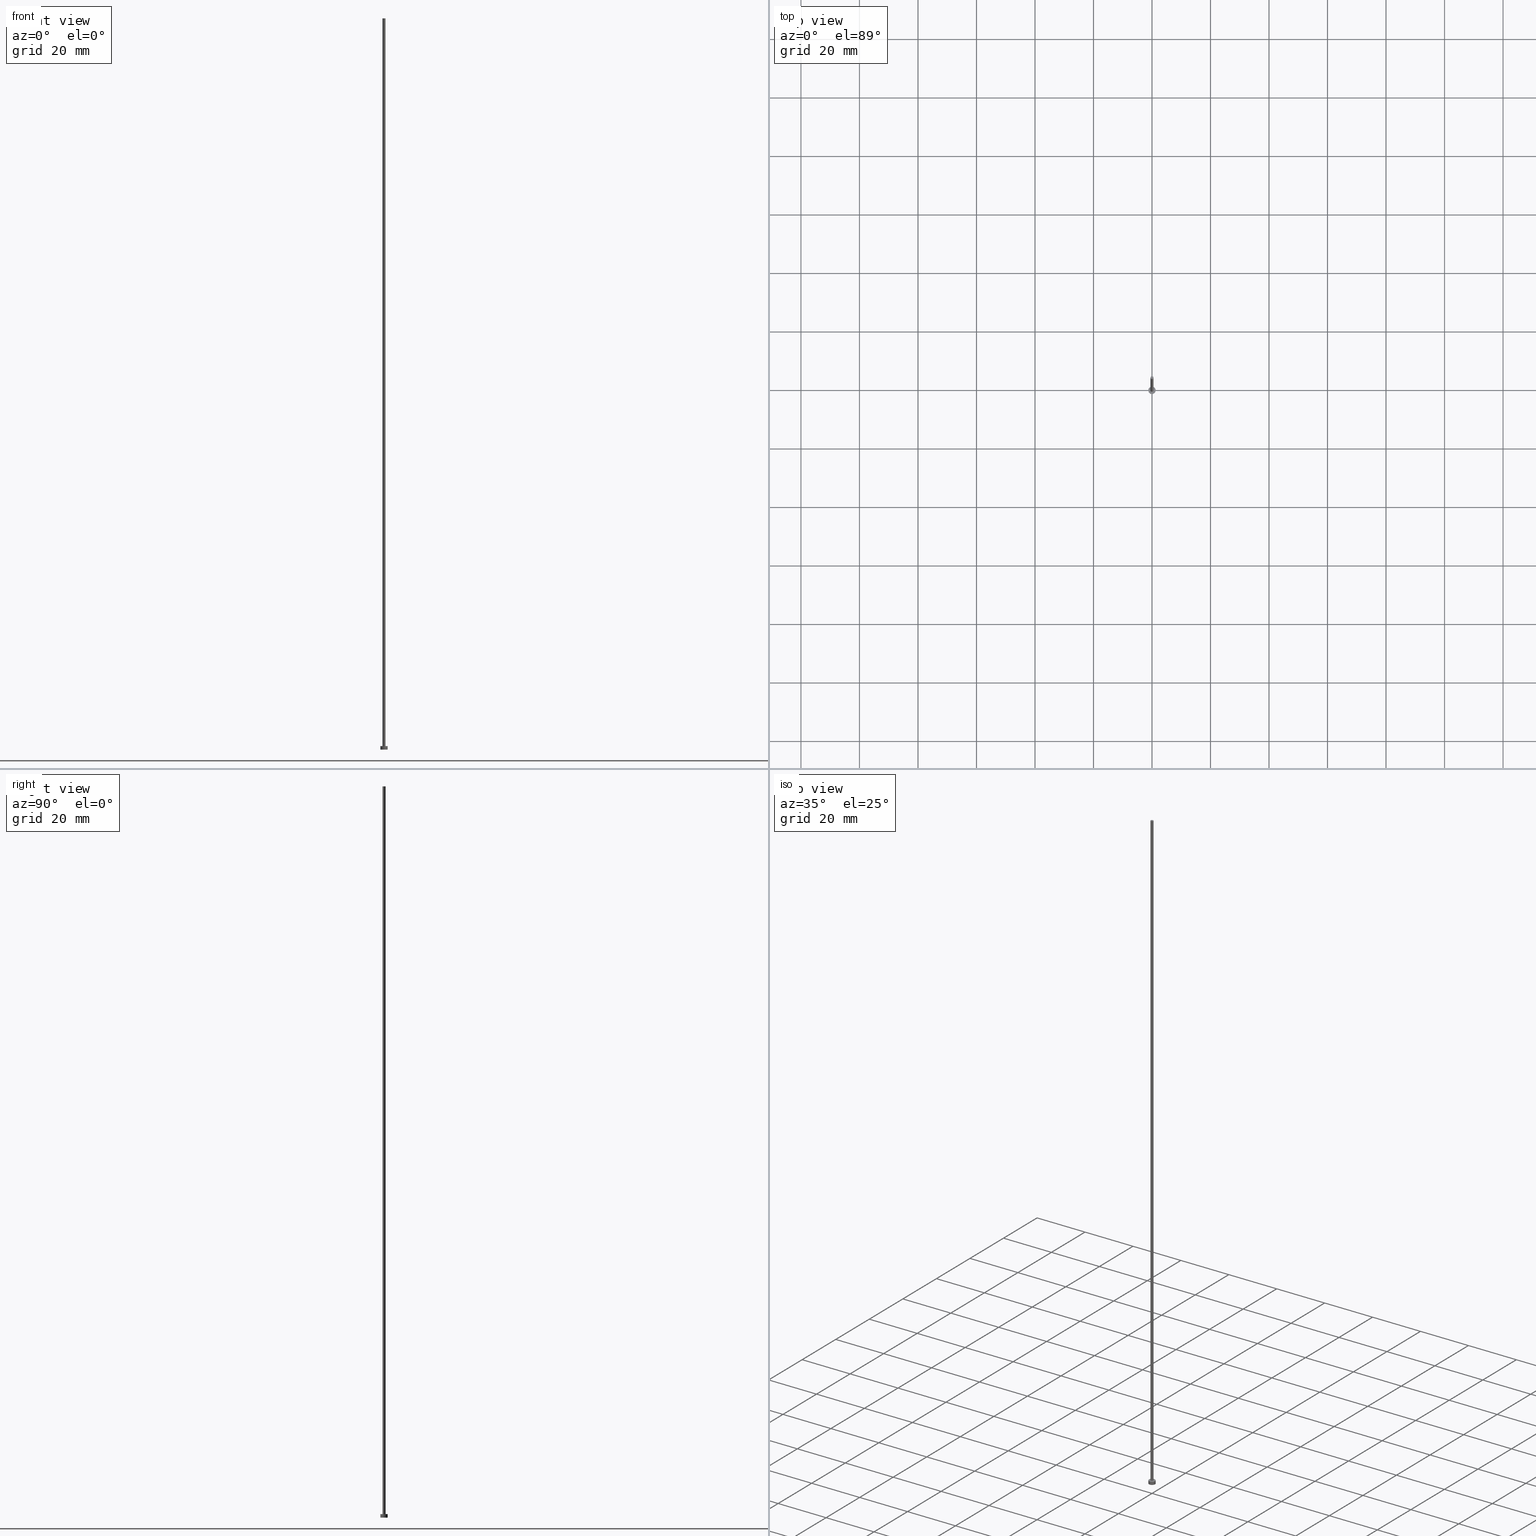
[diagram: canonical four-view strip — front | top / right | iso, engineering-drawing reading convention]
A machine part, canonical four-view strip (front | top / right | iso — engineering-drawing reading convention). The complete STEP part file that produces these views, byte-faithful:
ISO-10303-21;
HEADER;
FILE_DESCRIPTION (( 'STEP AP203' ),
    '1' );
FILE_NAME ('420b.STEP',
    '2026-02-06T12:34:04',
    ( '' ),
    ( '' ),
    'SwSTEP 2.0',
    'SolidWorks 2019',
    '' );
FILE_SCHEMA (( 'CONFIG_CONTROL_DESIGN' ));
ENDSEC;

DATA;
#1 = ORIENTED_EDGE ( 'NONE', *, *, #138, .T. ) ;
#2 = APPLICATION_PROTOCOL_DEFINITION ( 'international standard', 'config_control_design', 1994, #229 ) ;
#3 = ORIENTED_EDGE ( 'NONE', *, *, #138, .F. ) ;
#4 = CYLINDRICAL_SURFACE ( 'NONE', #218, 0.5000000000000000000 ) ;
#5 = APPROVAL ( #194, 'NEUR�EN�' ) ;
#6 = DIRECTION ( 'NONE',  ( 1.000000000000000000, 0.000000000000000000, 0.000000000000000000 ) ) ;
#7 = DIRECTION ( 'NONE',  ( -1.000000000000000000, 0.000000000000000000, 0.000000000000000000 ) ) ;
#8 = CARTESIAN_POINT ( 'NONE',  ( 0.000000000000000000, 0.000000000000000000, 250.0000000000000000 ) ) ;
#9 = ADVANCED_FACE ( 'NONE', ( #80 ), #160, .T. ) ;
#10 = PERSON_AND_ORGANIZATION_ROLE ( 'creator' ) ;
#11 = EDGE_CURVE ( 'NONE', #120, #136, #49, .T. ) ;
#12 = CC_DESIGN_PERSON_AND_ORGANIZATION_ASSIGNMENT ( #213, #10, ( #57 ) ) ;
#13 = AXIS2_PLACEMENT_3D ( 'NONE', #132, #23, #246 ) ;
#14 = CARTESIAN_POINT ( 'NONE',  ( -1.250000000000000000, 0.000000000000000000, 1.199999999999999956 ) ) ;
#15 = ORIENTED_EDGE ( 'NONE', *, *, #31, .F. ) ;
#16 = AXIS2_PLACEMENT_3D ( 'NONE', #71, #32, #95 ) ;
#17 = ORIENTED_EDGE ( 'NONE', *, *, #192, .T. ) ;
#18 = ORIENTED_EDGE ( 'NONE', *, *, #195, .F. ) ;
#19 = ORIENTED_EDGE ( 'NONE', *, *, #36, .T. ) ;
#20 = DIRECTION ( 'NONE',  ( 1.000000000000000000, 0.000000000000000000, 0.000000000000000000 ) ) ;
#21 = CC_DESIGN_APPROVAL ( #253, ( #154 ) ) ;
#22 = CARTESIAN_POINT ( 'NONE',  ( 0.000000000000000000, 0.000000000000000000, 0.000000000000000000 ) ) ;
#23 = DIRECTION ( 'NONE',  ( 0.000000000000000000, 0.000000000000000000, 1.000000000000000000 ) ) ;
#24 = PLANE ( 'NONE',  #43 ) ;
#25 = PLANE ( 'NONE',  #13 ) ;
#26 = CARTESIAN_POINT ( 'NONE',  ( -0.5000000000000000000, 0.000000000000000000, 250.0000000000000000 ) ) ;
#27 = PERSON_AND_ORGANIZATION ( #162, #85 ) ;
#28 = CARTESIAN_POINT ( 'NONE',  ( -1.250000000000000000, 0.000000000000000000, 1.199999999999999956 ) ) ;
#29 = CC_DESIGN_PERSON_AND_ORGANIZATION_ASSIGNMENT ( #242, #198, ( #66 ) ) ;
#30 = CYLINDRICAL_SURFACE ( 'NONE', #92, 1.250000000000000000 ) ;
#31 = EDGE_CURVE ( 'NONE', #99, #34, #37, .T. ) ;
#32 = DIRECTION ( 'NONE',  ( 0.000000000000000000, 0.000000000000000000, 1.000000000000000000 ) ) ;
#33 = CIRCLE ( 'NONE', #70, 1.250000000000000000 ) ;
#34 = VERTEX_POINT ( 'NONE', #124 ) ;
#35 = ORIENTED_EDGE ( 'NONE', *, *, #245, .T. ) ;
#36 = EDGE_CURVE ( 'NONE', #178, #193, #146, .T. ) ;
#37 = LINE ( 'NONE', #243, #116 ) ;
#38 = PRODUCT_DEFINITION_SHAPE ( 'NONE', 'NONE',  #154 ) ;
#39 = DIRECTION ( 'NONE',  ( 1.000000000000000000, 0.000000000000000000, 0.000000000000000000 ) ) ;
#40 = DIRECTION ( 'NONE',  ( -0.000000000000000000, -0.000000000000000000, -1.000000000000000000 ) ) ;
#41 = CARTESIAN_POINT ( 'NONE',  ( 0.000000000000000000, 0.000000000000000000, 0.000000000000000000 ) ) ;
#42 = CC_DESIGN_DATE_AND_TIME_ASSIGNMENT ( #77, #118, ( #66 ) ) ;
#43 = AXIS2_PLACEMENT_3D ( 'NONE', #247, #63, #128 ) ;
#44 = DIRECTION ( 'NONE',  ( 1.000000000000000000, 0.000000000000000000, 0.000000000000000000 ) ) ;
#45 = APPROVAL_ROLE ( '' ) ;
#46 = CARTESIAN_POINT ( 'NONE',  ( 0.000000000000000000, 0.000000000000000000, 1.199999999999999956 ) ) ;
#47 = APPROVAL_PERSON_ORGANIZATION ( #59, #5, #158 ) ;
#48 = ADVANCED_FACE ( 'NONE', ( #167 ), #204, .T. ) ;
#49 = CIRCLE ( 'NONE', #140, 1.250000000000000000 ) ;
#50 = ORIENTED_EDGE ( 'NONE', *, *, #106, .T. ) ;
#51 = EDGE_LOOP ( 'NONE', ( #159, #17, #19, #224 ) ) ;
#52 = ORIENTED_EDGE ( 'NONE', *, *, #153, .T. ) ;
#53 = CC_DESIGN_PERSON_AND_ORGANIZATION_ASSIGNMENT ( #221, #141, ( #57 ) ) ;
#54 = COORDINATED_UNIVERSAL_TIME_OFFSET ( 1, 0, .AHEAD. ) ;
#55 = EDGE_LOOP ( 'NONE', ( #143, #74, #197, #50 ) ) ;
#56 = EDGE_LOOP ( 'NONE', ( #236, #139 ) ) ;
#57 = PRODUCT_DEFINITION_FORMATION_WITH_SPECIFIED_SOURCE ( 'LIBOVOLN�', '', #127, .NOT_KNOWN. ) ;
#58 = CARTESIAN_POINT ( 'NONE',  ( 0.000000000000000000, 0.000000000000000000, 1.199999999999999956 ) ) ;
#59 = PERSON_AND_ORGANIZATION ( #162, #85 ) ;
#60 = DIRECTION ( 'NONE',  ( -0.000000000000000000, -0.000000000000000000, -1.000000000000000000 ) ) ;
#61 = AXIS2_PLACEMENT_3D ( 'NONE', #216, #93, #233 ) ;
#62 = CARTESIAN_POINT ( 'NONE',  ( 1.250000000000000000, 1.530808498934191571E-16, 1.199999999999999956 ) ) ;
#63 = DIRECTION ( 'NONE',  ( 0.000000000000000000, 0.000000000000000000, 1.000000000000000000 ) ) ;
#64 = DIRECTION ( 'NONE',  ( -0.000000000000000000, -0.000000000000000000, -1.000000000000000000 ) ) ;
#65 =( NAMED_UNIT ( * ) SI_UNIT ( $, .STERADIAN. ) SOLID_ANGLE_UNIT ( ) );
#66 = SECURITY_CLASSIFICATION ( '', '', #203 ) ;
#67 = COORDINATED_UNIVERSAL_TIME_OFFSET ( 1, 0, .AHEAD. ) ;
#68 = FACE_BOUND ( 'NONE', #201, .T. ) ;
#69 =( NAMED_UNIT ( * ) PLANE_ANGLE_UNIT ( ) SI_UNIT ( $, .RADIAN. ) );
#70 = AXIS2_PLACEMENT_3D ( 'NONE', #41, #130, #210 ) ;
#71 = CARTESIAN_POINT ( 'NONE',  ( 0.000000000000000000, 0.000000000000000000, 1.199999999999999956 ) ) ;
#72 =( LENGTH_UNIT ( ) NAMED_UNIT ( * ) SI_UNIT ( .MILLI., .METRE. ) );
#73 = ADVANCED_FACE ( 'NONE', ( #84 ), #4, .T. ) ;
#74 = ORIENTED_EDGE ( 'NONE', *, *, #11, .F. ) ;
#75 = CIRCLE ( 'NONE', #102, 0.5000000000000000000 ) ;
#76 = APPROVAL ( #250, 'NEUR�EN�' ) ;
#77 = DATE_AND_TIME ( #239, #202 ) ;
#78 = AXIS2_PLACEMENT_3D ( 'NONE', #83, #40, #7 ) ;
#79 = APPROVAL_ROLE ( '' ) ;
#80 = FACE_OUTER_BOUND ( 'NONE', #51, .T. ) ;
#81 = PERSON_AND_ORGANIZATION_ROLE ( 'design_owner' ) ;
#82 = UNCERTAINTY_MEASURE_WITH_UNIT (LENGTH_MEASURE( 1.000000000000000082E-05 ), #72, 'distance_accuracy_value', 'NONE');
#83 = CARTESIAN_POINT ( 'NONE',  ( 0.000000000000000000, 0.000000000000000000, 250.0000000000000000 ) ) ;
#84 = FACE_OUTER_BOUND ( 'NONE', #156, .T. ) ;
#85 = ORGANIZATION ( 'NEUR�EN�', 'NEUR�EN�', '' ) ;
#86 = ADVANCED_FACE ( 'NONE', ( #206 ), #24, .F. ) ;
#87 = LINE ( 'NONE', #248, #133 ) ;
#88 = DIRECTION ( 'NONE',  ( 0.000000000000000000, 0.000000000000000000, 1.000000000000000000 ) ) ;
#89 = DATE_TIME_ROLE ( 'creation_date' ) ;
#90 = DIRECTION ( 'NONE',  ( -0.000000000000000000, -0.000000000000000000, -1.000000000000000000 ) ) ;
#91 = APPROVAL_STATUS ( 'not_yet_approved' ) ;
#92 = AXIS2_PLACEMENT_3D ( 'NONE', #112, #90, #172 ) ;
#93 = DIRECTION ( 'NONE',  ( 0.000000000000000000, 0.000000000000000000, 1.000000000000000000 ) ) ;
#94 = EDGE_CURVE ( 'NONE', #184, #104, #208, .T. ) ;
#95 = DIRECTION ( 'NONE',  ( 1.000000000000000000, 0.000000000000000000, 0.000000000000000000 ) ) ;
#96 = ORIENTED_EDGE ( 'NONE', *, *, #94, .F. ) ;
#97 = LOCAL_TIME ( 13, 34, 4.000000000000000000, #67 ) ;
#98 = CALENDAR_DATE ( 2026, 6, 2 ) ;
#99 = VERTEX_POINT ( 'NONE', #249 ) ;
#100 = DATE_AND_TIME ( #98, #174 ) ;
#101 = PERSON_AND_ORGANIZATION ( #162, #85 ) ;
#102 = AXIS2_PLACEMENT_3D ( 'NONE', #46, #88, #6 ) ;
#103 = VECTOR ( 'NONE', #190, 1000.000000000000000 ) ;
#104 = VERTEX_POINT ( 'NONE', #149 ) ;
#105 = DIRECTION ( 'NONE',  ( 0.000000000000000000, 0.000000000000000000, 1.000000000000000000 ) ) ;
#106 = EDGE_CURVE ( 'NONE', #193, #178, #33, .T. ) ;
#107 = DIRECTION ( 'NONE',  ( 0.000000000000000000, 0.000000000000000000, 1.000000000000000000 ) ) ;
#108 = CC_DESIGN_PERSON_AND_ORGANIZATION_ASSIGNMENT ( #27, #111, ( #154 ) ) ;
#109 = DIRECTION ( 'NONE',  ( -1.000000000000000000, 0.000000000000000000, 0.000000000000000000 ) ) ;
#110 = AXIS2_PLACEMENT_3D ( 'NONE', #22, #107, #39 ) ;
#111 = PERSON_AND_ORGANIZATION_ROLE ( 'creator' ) ;
#112 = CARTESIAN_POINT ( 'NONE',  ( 0.000000000000000000, 0.000000000000000000, 1.199999999999999956 ) ) ;
#113 = CALENDAR_DATE ( 2026, 6, 2 ) ;
#114 = AXIS2_PLACEMENT_3D ( 'NONE', #191, #181, #255 ) ;
#115 = DIRECTION ( 'NONE',  ( 0.000000000000000000, 0.000000000000000000, 1.000000000000000000 ) ) ;
#116 = VECTOR ( 'NONE', #60, 1000.000000000000000 ) ;
#117 = ORIENTED_EDGE ( 'NONE', *, *, #31, .T. ) ;
#118 = DATE_TIME_ROLE ( 'classification_date' ) ;
#119 = ORIENTED_EDGE ( 'NONE', *, *, #94, .T. ) ;
#120 = VERTEX_POINT ( 'NONE', #28 ) ;
#121 = APPROVAL_DATE_TIME ( #100, #5 ) ;
#122 = EDGE_LOOP ( 'NONE', ( #52, #237 ) ) ;
#123 = APPROVAL_PERSON_ORGANIZATION ( #131, #76, #45 ) ;
#124 = CARTESIAN_POINT ( 'NONE',  ( 0.5000000000000000000, 6.123233995736764803E-17, 1.199999999999999956 ) ) ;
#125 = DATE_AND_TIME ( #173, #183 ) ;
#126 = DIRECTION ( 'NONE',  ( -0.000000000000000000, -0.000000000000000000, -1.000000000000000000 ) ) ;
#127 = PRODUCT ( '420b', '420b', '', ( #188 ) ) ;
#128 = DIRECTION ( 'NONE',  ( 1.000000000000000000, 0.000000000000000000, -0.000000000000000000 ) ) ;
#129 = CARTESIAN_POINT ( 'NONE',  ( -1.250000000000000000, 0.000000000000000000, 0.000000000000000000 ) ) ;
#130 = DIRECTION ( 'NONE',  ( 0.000000000000000000, 0.000000000000000000, 1.000000000000000000 ) ) ;
#131 = PERSON_AND_ORGANIZATION ( #162, #85 ) ;
#132 = CARTESIAN_POINT ( 'NONE',  ( 0.000000000000000000, 0.000000000000000000, 1.199999999999999956 ) ) ;
#133 = VECTOR ( 'NONE', #64, 1000.000000000000000 ) ;
#134 = CIRCLE ( 'NONE', #226, 1.250000000000000000 ) ;
#135 = ADVANCED_BREP_SHAPE_REPRESENTATION ( '420b', ( #219, #240 ), #230 ) ;
#136 = VERTEX_POINT ( 'NONE', #62 ) ;
#137 = COORDINATED_UNIVERSAL_TIME_OFFSET ( 1, 0, .AHEAD. ) ;
#138 = EDGE_CURVE ( 'NONE', #104, #34, #75, .T. ) ;
#139 = ORIENTED_EDGE ( 'NONE', *, *, #235, .T. ) ;
#140 = AXIS2_PLACEMENT_3D ( 'NONE', #58, #142, #199 ) ;
#141 = PERSON_AND_ORGANIZATION_ROLE ( 'design_supplier' ) ;
#142 = DIRECTION ( 'NONE',  ( 0.000000000000000000, 0.000000000000000000, 1.000000000000000000 ) ) ;
#143 = ORIENTED_EDGE ( 'NONE', *, *, #192, .F. ) ;
#144 = DATE_AND_TIME ( #113, #150 ) ;
#145 = CARTESIAN_POINT ( 'NONE',  ( 0.000000000000000000, 0.000000000000000000, 0.000000000000000000 ) ) ;
#146 = CIRCLE ( 'NONE', #110, 1.250000000000000000 ) ;
#147 = CARTESIAN_POINT ( 'NONE',  ( 0.000000000000000000, 0.000000000000000000, 250.0000000000000000 ) ) ;
#148 = FACE_OUTER_BOUND ( 'NONE', #157, .T. ) ;
#149 = CARTESIAN_POINT ( 'NONE',  ( -0.5000000000000000000, 0.000000000000000000, 1.199999999999999956 ) ) ;
#150 = LOCAL_TIME ( 13, 34, 4.000000000000000000, #212 ) ;
#151 = CARTESIAN_POINT ( 'NONE',  ( 1.250000000000000000, 1.530808498934191571E-16, 0.000000000000000000 ) ) ;
#152 = DIRECTION ( 'NONE',  ( 0.000000000000000000, 0.000000000000000000, 1.000000000000000000 ) ) ;
#153 = EDGE_CURVE ( 'NONE', #184, #99, #244, .T. ) ;
#154 = PRODUCT_DEFINITION ( 'NEZN�M�', '', #57, #254 ) ;
#155 = CARTESIAN_POINT ( 'NONE',  ( 0.000000000000000000, 0.000000000000000000, 1.199999999999999956 ) ) ;
#156 = EDGE_LOOP ( 'NONE', ( #15, #222, #119, #1 ) ) ;
#157 = EDGE_LOOP ( 'NONE', ( #18, #117, #35, #96 ) ) ;
#158 = APPROVAL_ROLE ( '' ) ;
#159 = ORIENTED_EDGE ( 'NONE', *, *, #235, .F. ) ;
#160 = CYLINDRICAL_SURFACE ( 'NONE', #114, 1.250000000000000000 ) ;
#161 = AXIS2_PLACEMENT_3D ( 'NONE', #147, #105, #185 ) ;
#162 = PERSON ( 'NEUR�EN�', 'NEUR�EN�', 'NEUR�EN�', ('NEUR�EN�'), ('NEUR�EN�'), ('NEUR�EN�') ) ;
#163 = ADVANCED_FACE ( 'NONE', ( #148 ), #211, .T. ) ;
#164 = COORDINATED_UNIVERSAL_TIME_OFFSET ( 1, 0, .AHEAD. ) ;
#165 = APPLICATION_CONTEXT ( 'configuration controlled 3d designs of mechanical parts and assemblies' ) ;
#166 = CC_DESIGN_APPROVAL ( #76, ( #57 ) ) ;
#167 = FACE_OUTER_BOUND ( 'NONE', #122, .T. ) ;
#168 = DIRECTION ( 'NONE',  ( -0.000000000000000000, -0.000000000000000000, -1.000000000000000000 ) ) ;
#169 = FACE_OUTER_BOUND ( 'NONE', #55, .T. ) ;
#170 = CALENDAR_DATE ( 2026, 6, 2 ) ;
#171 = CC_DESIGN_PERSON_AND_ORGANIZATION_ASSIGNMENT ( #101, #81, ( #127 ) ) ;
#172 = DIRECTION ( 'NONE',  ( -1.000000000000000000, 0.000000000000000000, 0.000000000000000000 ) ) ;
#173 = CALENDAR_DATE ( 2026, 6, 2 ) ;
#174 = LOCAL_TIME ( 13, 34, 4.000000000000000000, #137 ) ;
#175 = DIRECTION ( 'NONE',  ( 0.000000000000000000, 0.000000000000000000, 1.000000000000000000 ) ) ;
#176 = DIRECTION ( 'NONE',  ( 1.000000000000000000, 0.000000000000000000, 0.000000000000000000 ) ) ;
#177 = ADVANCED_FACE ( 'NONE', ( #169 ), #30, .T. ) ;
#178 = VERTEX_POINT ( 'NONE', #151 ) ;
#179 = ORIENTED_EDGE ( 'NONE', *, *, #36, .F. ) ;
#180 = ORIENTED_EDGE ( 'NONE', *, *, #106, .F. ) ;
#181 = DIRECTION ( 'NONE',  ( -0.000000000000000000, -0.000000000000000000, -1.000000000000000000 ) ) ;
#182 = APPLICATION_PROTOCOL_DEFINITION ( 'international standard', 'config_control_design', 1994, #165 ) ;
#183 = LOCAL_TIME ( 13, 34, 4.000000000000000000, #164 ) ;
#184 = VERTEX_POINT ( 'NONE', #207 ) ;
#185 = DIRECTION ( 'NONE',  ( 1.000000000000000000, 0.000000000000000000, -0.000000000000000000 ) ) ;
#186 = ADVANCED_FACE ( 'NONE', ( #68, #232 ), #25, .T. ) ;
#187 = DATE_AND_TIME ( #170, #97 ) ;
#188 = MECHANICAL_CONTEXT ( 'NONE', #229, 'mechanical' ) ;
#189 = CC_DESIGN_SECURITY_CLASSIFICATION ( #66, ( #57 ) ) ;
#190 = DIRECTION ( 'NONE',  ( -0.000000000000000000, -0.000000000000000000, -1.000000000000000000 ) ) ;
#191 = CARTESIAN_POINT ( 'NONE',  ( 0.000000000000000000, 0.000000000000000000, 1.199999999999999956 ) ) ;
#192 = EDGE_CURVE ( 'NONE', #136, #178, #87, .T. ) ;
#193 = VERTEX_POINT ( 'NONE', #129 ) ;
#194 = APPROVAL_STATUS ( 'not_yet_approved' ) ;
#195 = EDGE_CURVE ( 'NONE', #99, #184, #209, .T. ) ;
#196 = CC_DESIGN_APPROVAL ( #5, ( #66 ) ) ;
#197 = ORIENTED_EDGE ( 'NONE', *, *, #228, .T. ) ;
#198 = PERSON_AND_ORGANIZATION_ROLE ( 'classification_officer' ) ;
#199 = DIRECTION ( 'NONE',  ( 1.000000000000000000, 0.000000000000000000, 0.000000000000000000 ) ) ;
#200 = SHAPE_DEFINITION_REPRESENTATION ( #38, #135 ) ;
#201 = EDGE_LOOP ( 'NONE', ( #3, #238 ) ) ;
#202 = LOCAL_TIME ( 13, 34, 4.000000000000000000, #54 ) ;
#203 = SECURITY_CLASSIFICATION_LEVEL ( 'unclassified' ) ;
#204 = PLANE ( 'NONE',  #161 ) ;
#205 = APPROVAL_DATE_TIME ( #125, #253 ) ;
#206 = FACE_OUTER_BOUND ( 'NONE', #225, .T. ) ;
#207 = CARTESIAN_POINT ( 'NONE',  ( -0.5000000000000000000, 0.000000000000000000, 250.0000000000000000 ) ) ;
#208 = LINE ( 'NONE', #26, #251 ) ;
#209 = CIRCLE ( 'NONE', #61, 0.5000000000000000000 ) ;
#210 = DIRECTION ( 'NONE',  ( 1.000000000000000000, 0.000000000000000000, 0.000000000000000000 ) ) ;
#211 = CYLINDRICAL_SURFACE ( 'NONE', #78, 0.5000000000000000000 ) ;
#212 = COORDINATED_UNIVERSAL_TIME_OFFSET ( 1, 0, .AHEAD. ) ;
#213 = PERSON_AND_ORGANIZATION ( #162, #85 ) ;
#214 = APPROVAL_PERSON_ORGANIZATION ( #231, #253, #79 ) ;
#215 = LINE ( 'NONE', #14, #103 ) ;
#216 = CARTESIAN_POINT ( 'NONE',  ( 0.000000000000000000, 0.000000000000000000, 250.0000000000000000 ) ) ;
#217 = AXIS2_PLACEMENT_3D ( 'NONE', #8, #175, #44 ) ;
#218 = AXIS2_PLACEMENT_3D ( 'NONE', #227, #126, #109 ) ;
#219 = MANIFOLD_SOLID_BREP ( 'P�idat vysunut�m3', #223 ) ;
#220 = CC_DESIGN_DATE_AND_TIME_ASSIGNMENT ( #187, #89, ( #154 ) ) ;
#221 = PERSON_AND_ORGANIZATION ( #162, #85 ) ;
#222 = ORIENTED_EDGE ( 'NONE', *, *, #153, .F. ) ;
#223 = CLOSED_SHELL ( 'NONE', ( #163, #9, #177, #186, #86, #73, #48 ) ) ;
#224 = ORIENTED_EDGE ( 'NONE', *, *, #228, .F. ) ;
#225 = EDGE_LOOP ( 'NONE', ( #180, #179 ) ) ;
#226 = AXIS2_PLACEMENT_3D ( 'NONE', #155, #115, #176 ) ;
#227 = CARTESIAN_POINT ( 'NONE',  ( 0.000000000000000000, 0.000000000000000000, 250.0000000000000000 ) ) ;
#228 = EDGE_CURVE ( 'NONE', #120, #193, #215, .T. ) ;
#229 = APPLICATION_CONTEXT ( 'configuration controlled 3d designs of mechanical parts and assemblies' ) ;
#230 =( GEOMETRIC_REPRESENTATION_CONTEXT ( 3 ) GLOBAL_UNCERTAINTY_ASSIGNED_CONTEXT ( ( #82 ) ) GLOBAL_UNIT_ASSIGNED_CONTEXT ( ( #72, #69, #65 ) ) REPRESENTATION_CONTEXT ( 'NONE', 'WORKASPACE' ) );
#231 = PERSON_AND_ORGANIZATION ( #162, #85 ) ;
#232 = FACE_OUTER_BOUND ( 'NONE', #56, .T. ) ;
#233 = DIRECTION ( 'NONE',  ( 1.000000000000000000, 0.000000000000000000, 0.000000000000000000 ) ) ;
#234 = CIRCLE ( 'NONE', #16, 0.5000000000000000000 ) ;
#235 = EDGE_CURVE ( 'NONE', #136, #120, #134, .T. ) ;
#236 = ORIENTED_EDGE ( 'NONE', *, *, #11, .T. ) ;
#237 = ORIENTED_EDGE ( 'NONE', *, *, #195, .T. ) ;
#238 = ORIENTED_EDGE ( 'NONE', *, *, #245, .F. ) ;
#239 = CALENDAR_DATE ( 2026, 6, 2 ) ;
#240 = AXIS2_PLACEMENT_3D ( 'NONE', #145, #152, #20 ) ;
#241 = PRODUCT_RELATED_PRODUCT_CATEGORY ( 'detail', '', ( #127 ) ) ;
#242 = PERSON_AND_ORGANIZATION ( #162, #85 ) ;
#243 = CARTESIAN_POINT ( 'NONE',  ( 0.5000000000000000000, 6.123233995736764803E-17, 250.0000000000000000 ) ) ;
#244 = CIRCLE ( 'NONE', #217, 0.5000000000000000000 ) ;
#245 = EDGE_CURVE ( 'NONE', #34, #104, #234, .T. ) ;
#246 = DIRECTION ( 'NONE',  ( 1.000000000000000000, 0.000000000000000000, -0.000000000000000000 ) ) ;
#247 = CARTESIAN_POINT ( 'NONE',  ( 0.000000000000000000, 0.000000000000000000, 0.000000000000000000 ) ) ;
#248 = CARTESIAN_POINT ( 'NONE',  ( 1.250000000000000000, 1.530808498934191571E-16, 1.199999999999999956 ) ) ;
#249 = CARTESIAN_POINT ( 'NONE',  ( 0.5000000000000000000, 6.123233995736764803E-17, 250.0000000000000000 ) ) ;
#250 = APPROVAL_STATUS ( 'not_yet_approved' ) ;
#251 = VECTOR ( 'NONE', #168, 1000.000000000000000 ) ;
#252 = APPROVAL_DATE_TIME ( #144, #76 ) ;
#253 = APPROVAL ( #91, 'NEUR�EN�' ) ;
#254 = DESIGN_CONTEXT ( 'detailed design', #165, 'design' ) ;
#255 = DIRECTION ( 'NONE',  ( -1.000000000000000000, 0.000000000000000000, 0.000000000000000000 ) ) ;
ENDSEC;
END-ISO-10303-21;
